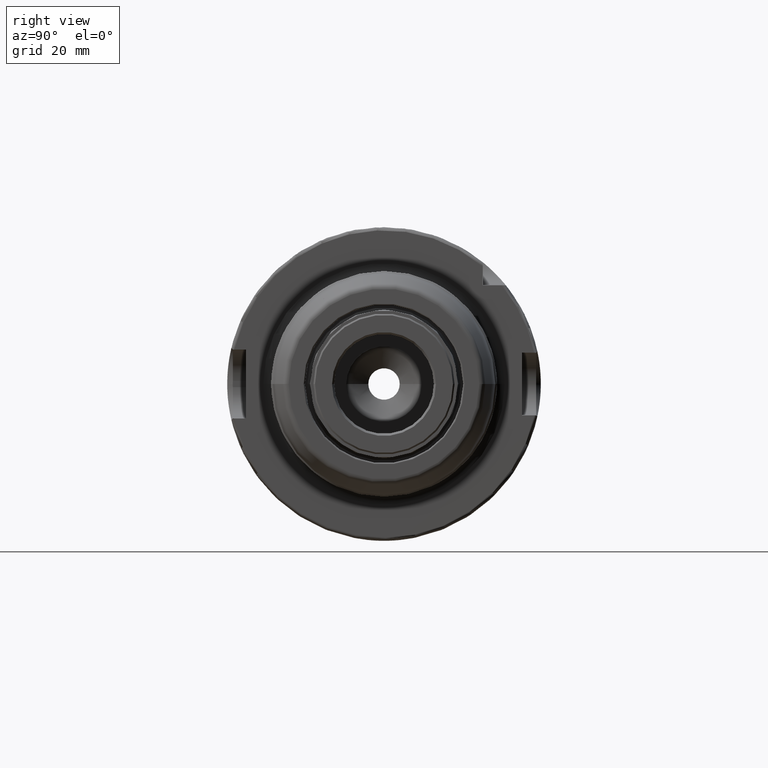
[diagram: clean part render]
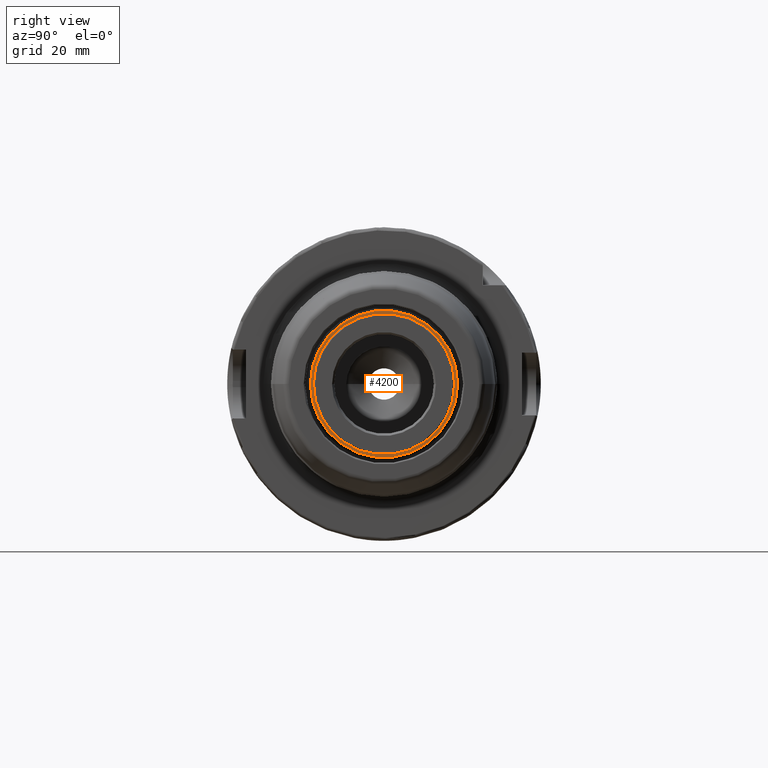
[diagram: same view with one face highlighted and labeled with its STEP entity id]
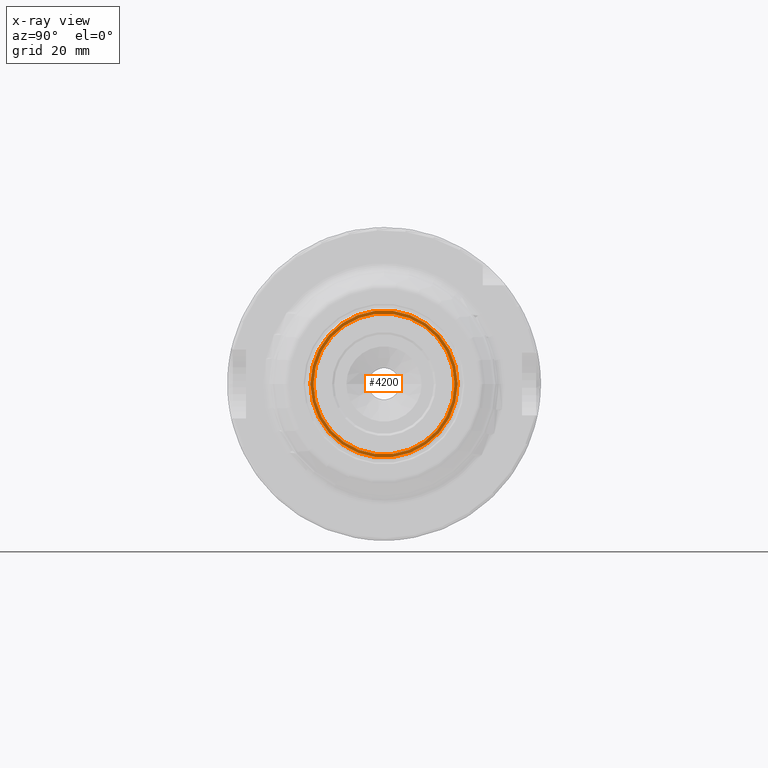
[diagram: x-ray of the same camera — body ghosted, the highlighted face saturated]
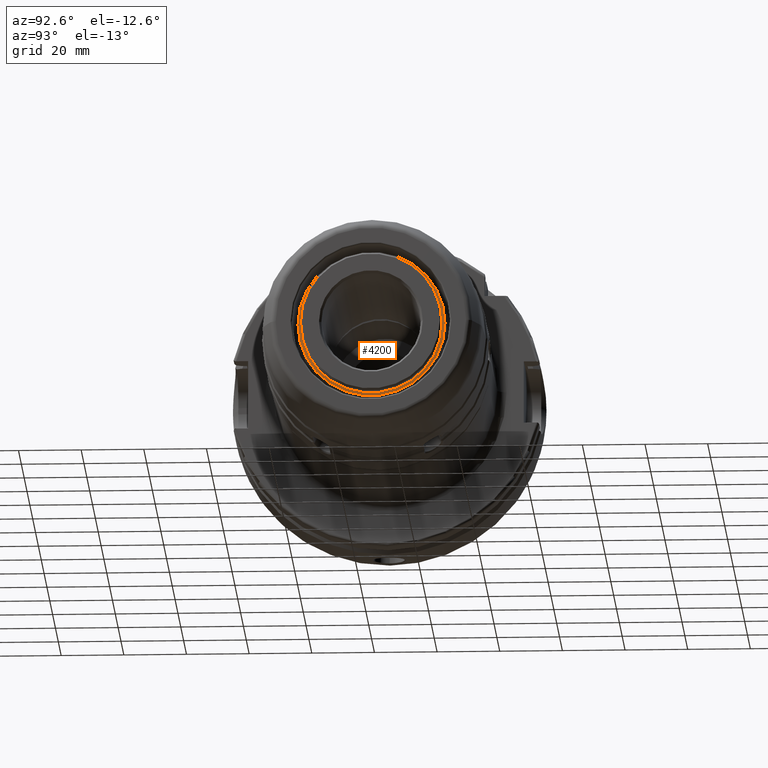
[diagram: same view with one face highlighted and labeled with its STEP entity id]
A machine part, right view. The second image highlights one B-rep face of the part: STEP entity #4200.
The next image is the same camera in x-ray: the body ghosted, the highlighted face saturated — about 0% of this face is hidden behind the body in this view.
A second angle (auxiliary view) of the same face is appended — the face is thin or edge-on in the first view.
In plain terms, the highlighted planar face has unit normal (1, 0, 0).
Its self-contained STEP definition (entity closure, byte-faithful):
#913=CARTESIAN_POINT('',(5.146025739519E0,0.E0,0.E0));
#914=DIRECTION('',(-1.E0,0.E0,0.E0));
#915=DIRECTION('',(0.E0,1.E0,0.E0));
#916=AXIS2_PLACEMENT_3D('',#913,#914,#915);
#922=CARTESIAN_POINT('',(5.146025739519E0,0.E0,0.E0));
#923=DIRECTION('',(1.E0,0.E0,0.E0));
#924=DIRECTION('',(0.E0,1.E0,0.E0));
#925=AXIS2_PLACEMENT_3D('',#922,#923,#924);
#927=CARTESIAN_POINT('',(5.146025739519E0,0.E0,0.E0));
#928=DIRECTION('',(1.E0,0.E0,0.E0));
#929=DIRECTION('',(0.E0,1.E0,0.E0));
#930=AXIS2_PLACEMENT_3D('',#927,#928,#929);
#937=CARTESIAN_POINT('',(5.146025739519E0,0.E0,0.E0));
#938=DIRECTION('',(1.E0,0.E0,0.E0));
#939=DIRECTION('',(0.E0,-1.E0,0.E0));
#940=AXIS2_PLACEMENT_3D('',#937,#938,#939);
#3095=CARTESIAN_POINT('',(5.146025739519E0,8.859494566879E-1,0.E0));
#3097=VERTEX_POINT('',#3095);
#3103=CARTESIAN_POINT('',(5.146025739519E0,-8.859494566879E-1,0.E0));
#3105=VERTEX_POINT('',#3103);
#3115=CARTESIAN_POINT('',(5.146025739519E0,9.239494566879E-1,0.E0));
#3116=CARTESIAN_POINT('',(5.146025739519E0,-9.239494566879E-1,0.E0));
#3117=VERTEX_POINT('',#3115);
#3118=VERTEX_POINT('',#3116);
#4185=CARTESIAN_POINT('',(5.146025739519E0,0.E0,0.E0));
#4186=DIRECTION('',(1.E0,0.E0,0.E0));
#4187=DIRECTION('',(0.E0,-1.E0,0.E0));
#4188=AXIS2_PLACEMENT_3D('',#4185,#4186,#4187);
#4189=PLANE('',#4188);
#4191=ORIENTED_EDGE('',*,*,#4190,.F.);
#4193=ORIENTED_EDGE('',*,*,#4192,.F.);
#4194=EDGE_LOOP('',(#4191,#4193));
#4195=FACE_OUTER_BOUND('',#4194,.F.);
#4196=ORIENTED_EDGE('',*,*,#4180,.T.);
#4197=ORIENTED_EDGE('',*,*,#4164,.F.);
#4198=EDGE_LOOP('',(#4196,#4197));
#4199=FACE_BOUND('',#4198,.F.);
#4200=ADVANCED_FACE('',(#4195,#4199),#4189,.T.);
#917=CIRCLE('',#916,8.859494566879E-1);
#926=CIRCLE('',#925,8.859494566879E-1);
#931=CIRCLE('',#930,9.239494566879E-1);
#941=CIRCLE('',#940,9.239494566879E-1);
#4164=EDGE_CURVE('',#3097,#3105,#917,.T.);
#4180=EDGE_CURVE('',#3097,#3105,#926,.T.);
#4190=EDGE_CURVE('',#3117,#3118,#931,.T.);
#4192=EDGE_CURVE('',#3118,#3117,#941,.T.);